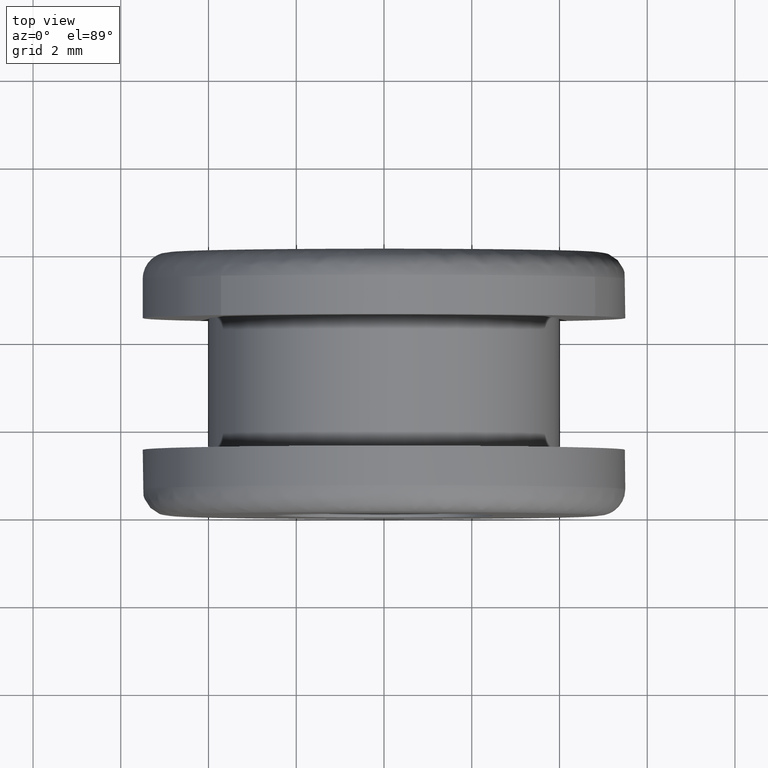
[diagram: clean part render]
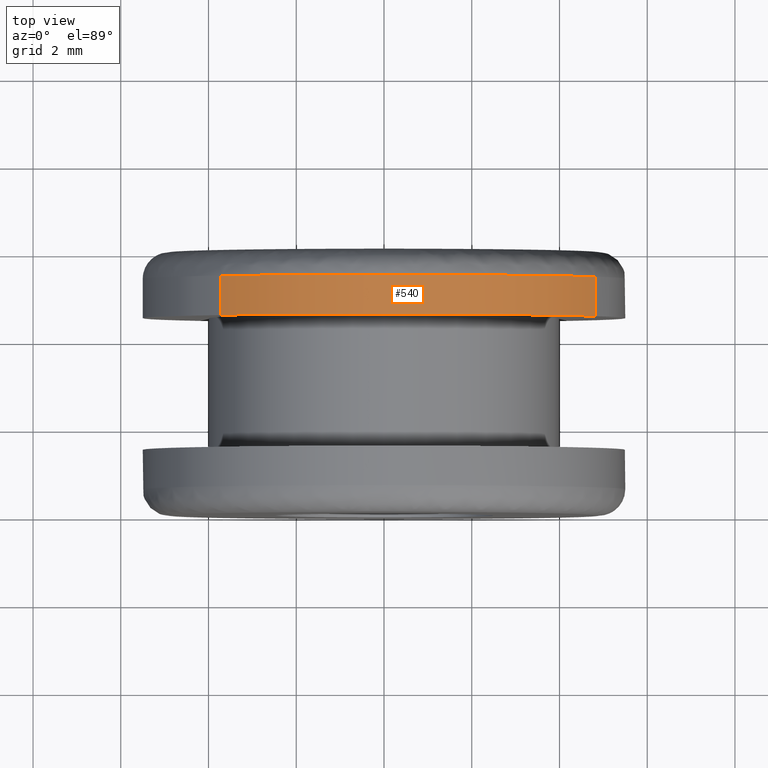
[diagram: same view with one face highlighted and labeled with its STEP entity id]
A machine part, top view. The second image highlights one B-rep face of the part: STEP entity #540.
In plain terms, the highlighted face is a freeform B-spline surface patch.
Its self-contained STEP definition (entity closure, byte-faithful):
#446=CARTESIAN_POINT('',(4.812205350937217,5.422500000028185,2.663208527399086));
#447=CARTESIAN_POINT('',(4.496083300651819,5.422500000028185,3.234415853555515));
#448=CARTESIAN_POINT('',(4.055025352455680,5.422500000028185,3.715746141886131));
#449=CARTESIAN_POINT('',(0.339279210569550,5.422500000028185,7.770771494341811));
#450=CARTESIAN_POINT('',(-3.715746141886131,5.422500000028185,4.055025352455680));
#451=CARTESIAN_POINT('',(4.812205350937217,4.476937499999296,2.663208527399086));
#452=CARTESIAN_POINT('',(4.496083300651819,4.476937499999296,3.234415853555515));
#453=CARTESIAN_POINT('',(4.055025352455680,4.476937499999295,3.715746141886131));
#454=CARTESIAN_POINT('',(0.339279210569550,4.476937499999295,7.770771494341811));
#455=CARTESIAN_POINT('',(-3.715746141886131,4.476937499999295,4.055025352455680));
#463=(BOUNDED_SURFACE()B_SPLINE_SURFACE(2,1,((#446,#451),(#447,#452),(#448,#453),(#449,#454),(#450,#455)),.UNSPECIFIED.,.F.,.F.,.U.)B_SPLINE_SURFACE_WITH_KNOTS((3,2,3),(2,2),(0.0,1.458031739553296,10.570730111761380),(0.0,1.0),.UNSPECIFIED.)GEOMETRIC_REPRESENTATION_ITEM()RATIONAL_B_SPLINE_SURFACE(((0.921270302782944,0.921270302782944),(0.953137084989848,0.953137084989848),(1.0,1.0),(0.707106781186548,0.707106781186548),(1.0,1.0)))REPRESENTATION_ITEM('')SURFACE());
#464=CARTESIAN_POINT('',(4.812205843439302,5.400000000000018,2.663207637486718));
#465=VERTEX_POINT('',#464);
#466=CARTESIAN_POINT('',(0.0,5.400000000000000,5.500000000000000));
#467=VERTEX_POINT('',#466);
#468=CARTESIAN_POINT('',(4.812205843439302,5.400000000000018,2.663207637486718));
#469=CARTESIAN_POINT('',(3.242246591569628,5.400000000000000,5.500000000000001));
#470=CARTESIAN_POINT('',(0.0,5.400000000000000,5.500000000000000));
#478=(BOUNDED_CURVE()B_SPLINE_CURVE(2,(#468,#469,#470),.UNSPECIFIED.,.F.,.U.)B_SPLINE_CURVE_WITH_KNOTS((3,3),(0.332484260513294,0.500000000000000),.UNSPECIFIED.)CURVE()GEOMETRIC_REPRESENTATION_ITEM()RATIONAL_B_SPLINE_CURVE((0.870495160132448,0.803743103439292,1.0))REPRESENTATION_ITEM(''));
#479=EDGE_CURVE('',#465,#467,#478,.T.);
#480=ORIENTED_EDGE('',*,*,#479,.T.);
#481=CARTESIAN_POINT('',(-3.715745918085256,5.400000000007310,4.055025557530997));
#482=VERTEX_POINT('',#481);
#483=CARTESIAN_POINT('',(0.0,5.400000000000000,5.500000000000000));
#484=CARTESIAN_POINT('',(-2.138832675736071,5.400000000000001,5.500000000000000));
#485=CARTESIAN_POINT('',(-3.715745918085256,5.400000000007310,4.055025557530997));
#493=(BOUNDED_CURVE()B_SPLINE_CURVE(2,(#483,#484,#485),.UNSPECIFIED.,.F.,.U.)B_SPLINE_CURVE_WITH_KNOTS((3,3),(0.500000000000000,0.618415192420787),.UNSPECIFIED.)CURVE()GEOMETRIC_REPRESENTATION_ITEM()RATIONAL_B_SPLINE_CURVE((1.0,0.861267972541846,0.853959782894757))REPRESENTATION_ITEM(''));
#494=EDGE_CURVE('',#467,#482,#493,.T.);
#495=ORIENTED_EDGE('',*,*,#494,.T.);
#496=CARTESIAN_POINT('',(-3.715745924040497,4.500000000000000,4.055025552074405));
#497=VERTEX_POINT('',#496);
#498=CARTESIAN_POINT('',(-3.715745918085256,5.400000000007310,4.055025557530997));
#499=CARTESIAN_POINT('',(-3.715745924040497,4.500000000000000,4.055025552074405));
#500=QUASI_UNIFORM_CURVE('',1,(#498,#499),.UNSPECIFIED.,.F.,.U.);
#501=EDGE_CURVE('',#482,#497,#500,.T.);
#502=ORIENTED_EDGE('',*,*,#501,.T.);
#503=CARTESIAN_POINT('',(0.0,4.500000000000000,5.500000000000000));
#504=VERTEX_POINT('',#503);
#505=CARTESIAN_POINT('',(0.0,4.500000000000000,5.500000000000000));
#506=CARTESIAN_POINT('',(-2.138832685034934,4.500000000000000,5.500000000000000));
#507=CARTESIAN_POINT('',(-3.715745924040497,4.500000000000001,4.055025552074405));
#515=(BOUNDED_CURVE()B_SPLINE_CURVE(2,(#505,#506,#507),.UNSPECIFIED.,.F.,.U.)B_SPLINE_CURVE_WITH_KNOTS((3,3),(0.500000000000000,0.618415192864190),.UNSPECIFIED.)CURVE()GEOMETRIC_REPRESENTATION_ITEM()RATIONAL_B_SPLINE_CURVE((1.0,0.861267972022367,0.853959782840026))REPRESENTATION_ITEM(''));
#516=EDGE_CURVE('',#504,#497,#515,.T.);
#517=ORIENTED_EDGE('',*,*,#516,.F.);
#518=CARTESIAN_POINT('',(4.812205804631674,4.500000000000000,2.663207707609066));
#519=VERTEX_POINT('',#518);
#520=CARTESIAN_POINT('',(4.812205804631675,4.500000000000000,2.663207707609067));
#521=CARTESIAN_POINT('',(3.242247168853135,4.500000000000001,5.499999999999999));
#522=CARTESIAN_POINT('',(0.0,4.500000000000000,5.500000000000000));
#530=(BOUNDED_CURVE()B_SPLINE_CURVE(2,(#520,#521,#522),.UNSPECIFIED.,.F.,.U.)B_SPLINE_CURVE_WITH_KNOTS((3,3),(0.332484236540648,0.500000000000000),.UNSPECIFIED.)CURVE()GEOMETRIC_REPRESENTATION_ITEM()RATIONAL_B_SPLINE_CURVE((0.870495179237803,0.803743075353590,1.0))REPRESENTATION_ITEM(''));
#531=EDGE_CURVE('',#519,#504,#530,.T.);
#532=ORIENTED_EDGE('',*,*,#531,.F.);
#533=CARTESIAN_POINT('',(4.812205843439302,5.400000000000018,2.663207637486718));
#534=CARTESIAN_POINT('',(4.812205804631674,4.500000000000000,2.663207707609066));
#535=QUASI_UNIFORM_CURVE('',1,(#533,#534),.UNSPECIFIED.,.F.,.U.);
#536=EDGE_CURVE('',#465,#519,#535,.T.);
#537=ORIENTED_EDGE('',*,*,#536,.F.);
#538=EDGE_LOOP('',(#480,#495,#502,#517,#532,#537));
#539=FACE_OUTER_BOUND('',#538,.T.);
#540=ADVANCED_FACE('',(#539),#463,.T.);